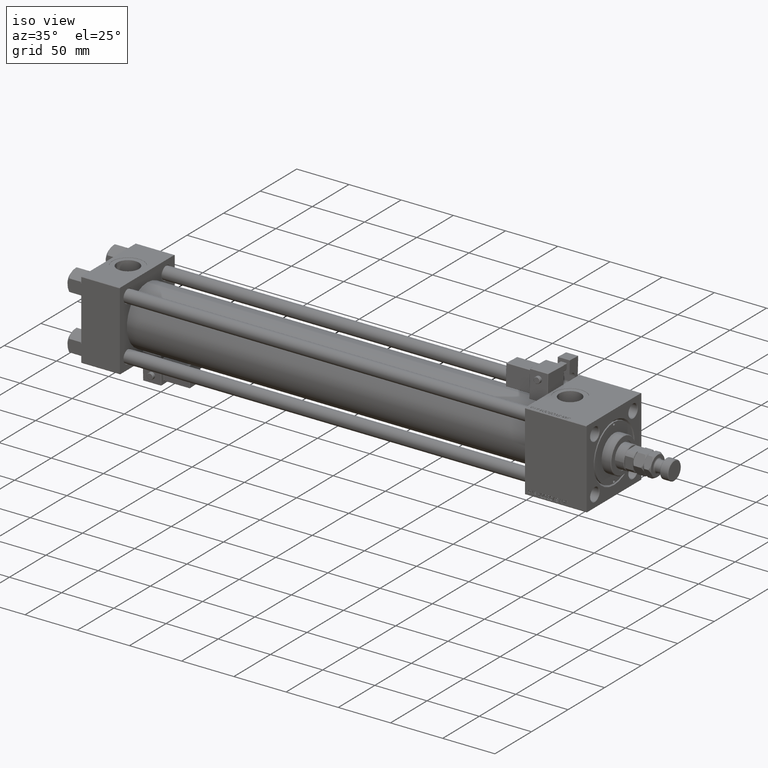
[diagram: clean part render]
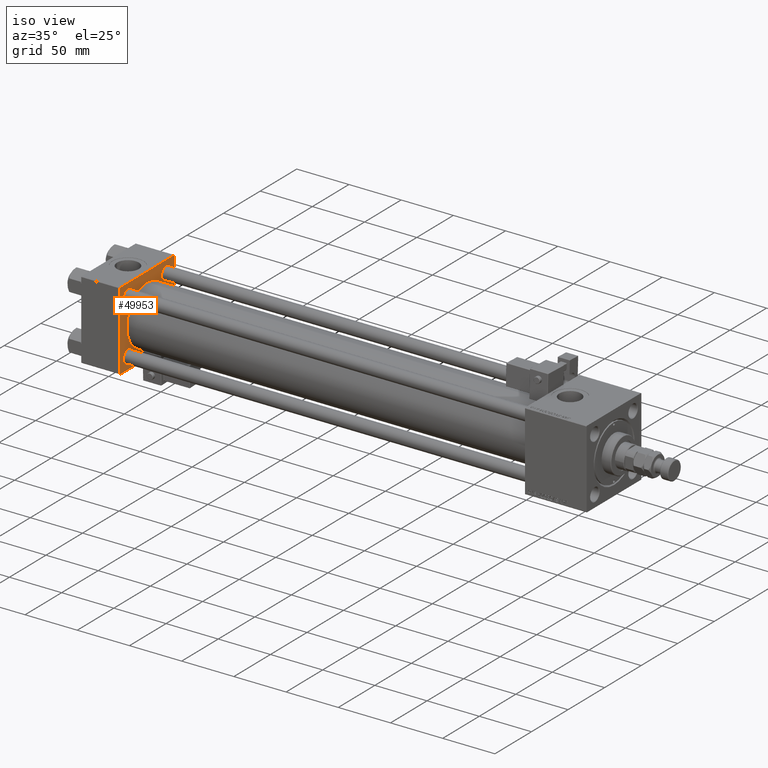
[diagram: same view with one face highlighted and labeled with its STEP entity id]
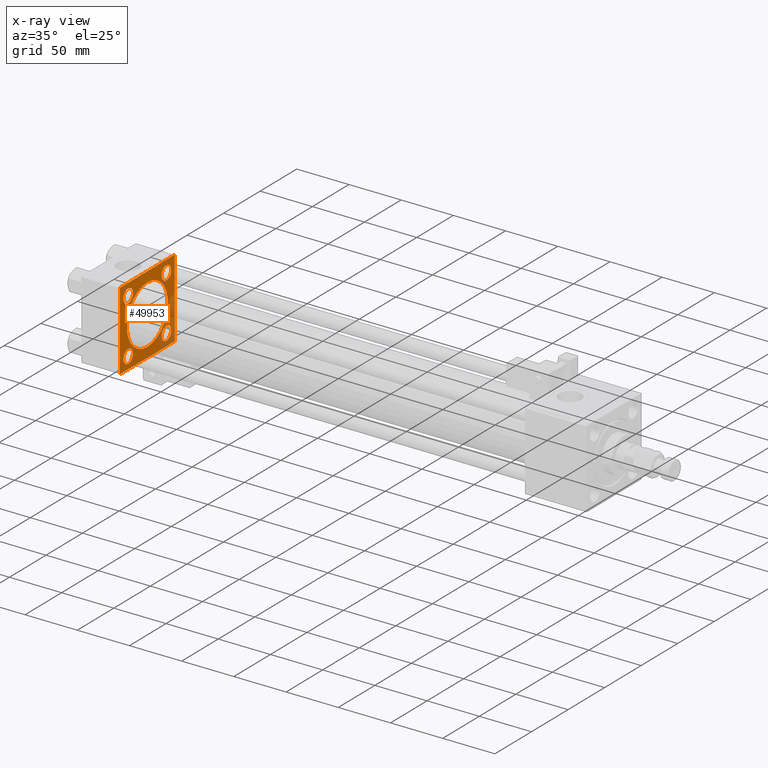
[diagram: x-ray of the same camera — body ghosted, the highlighted face saturated]
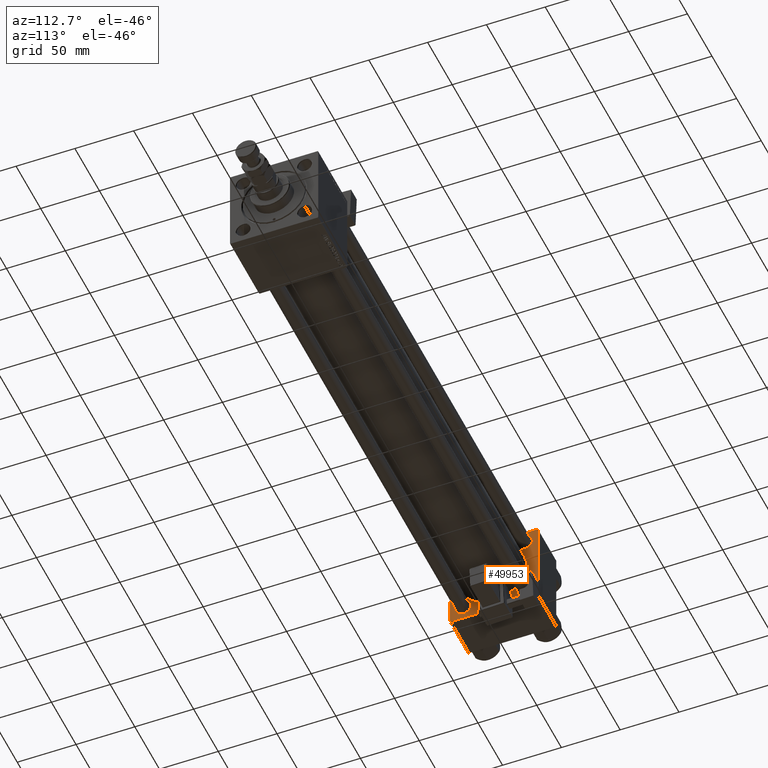
[diagram: same view with one face highlighted and labeled with its STEP entity id]
A machine part, iso view. The second image highlights one B-rep face of the part: STEP entity #49953.
The next image is the same camera in x-ray: the body ghosted, the highlighted face saturated — about 20% of this face is hidden behind the body in this view.
A second angle (auxiliary view) of the same face is appended — the face is thin or edge-on in the first view.
In plain terms, the highlighted planar face has unit normal (-1, 0, 0).
Its self-contained STEP definition (entity closure, byte-faithful):
#242 = LINE ( 'NONE', #22148, #11803 ) ;
#352 = VERTEX_POINT ( 'NONE', #8174 ) ;
#850 = CARTESIAN_POINT ( 'NONE',  ( 37.00000000000000000, -26.14999999999999147, 26.15000000000000924 ) ) ;
#1412 = DIRECTION ( 'NONE',  ( -1.000000000000000000, 0.000000000000000000, -0.000000000000000000 ) ) ;
#1723 = DIRECTION ( 'NONE',  ( -1.000000000000000000, 0.000000000000000000, -0.000000000000000000 ) ) ;
#1790 = DIRECTION ( 'NONE',  ( 0.000000000000000000, 0.000000000000000000, 1.000000000000000000 ) ) ;
#2245 = EDGE_CURVE ( 'NONE', #13250, #37395, #6244, .T. ) ;
#2467 = EDGE_LOOP ( 'NONE', ( #34985, #48156 ) ) ;
#2766 = FACE_BOUND ( 'NONE', #33603, .T. ) ;
#3042 = CARTESIAN_POINT ( 'NONE',  ( 37.00000000000000000, 0.000000000000000000, 0.000000000000000000 ) ) ;
#3247 = CARTESIAN_POINT ( 'NONE',  ( 37.00000000000000000, -37.50000000000000711, 37.49999999999999289 ) ) ;
#3639 = CARTESIAN_POINT ( 'NONE',  ( 37.00000000000000000, 26.14999999999999858, -19.65000000000005542 ) ) ;
#3756 = CARTESIAN_POINT ( 'NONE',  ( 37.00000000000000000, 37.49999999999999289, 37.00000000000000000 ) ) ;
#4483 = VERTEX_POINT ( 'NONE', #25247 ) ;
#5634 = ORIENTED_EDGE ( 'NONE', *, *, #12962, .T. ) ;
#6244 = CIRCLE ( 'NONE', #52657, 6.499999999999946709 ) ;
#6346 = DIRECTION ( 'NONE',  ( -1.000000000000000000, 0.000000000000000000, -0.000000000000000000 ) ) ;
#6620 = FACE_OUTER_BOUND ( 'NONE', #18062, .T. ) ;
#6739 = VERTEX_POINT ( 'NONE', #53852 ) ;
#7400 = VERTEX_POINT ( 'NONE', #47645 ) ;
#8165 = EDGE_CURVE ( 'NONE', #34318, #24798, #16839, .T. ) ;
#8174 = CARTESIAN_POINT ( 'NONE',  ( 37.00000000000000000, -26.14999999999999147, -19.65000000000000924 ) ) ;
#9033 = DIRECTION ( 'NONE',  ( -1.000000000000000000, 0.000000000000000000, -0.000000000000000000 ) ) ;
#9695 = VERTEX_POINT ( 'NONE', #3639 ) ;
#10541 = CARTESIAN_POINT ( 'NONE',  ( 36.99999999999997868, -2.602085213965210642E-15, 0.000000000000000000 ) ) ;
#10729 = CARTESIAN_POINT ( 'NONE',  ( 37.00000000000000000, 26.14999999999999858, 32.64999999999995595 ) ) ;
#10896 = ORIENTED_EDGE ( 'NONE', *, *, #23492, .T. ) ;
#10977 = FACE_BOUND ( 'NONE', #2467, .T. ) ;
#11002 = DIRECTION ( 'NONE',  ( 0.000000000000000000, -0.7071067811865474617, 0.7071067811865474617 ) ) ;
#11240 = FACE_BOUND ( 'NONE', #31406, .T. ) ;
#11274 = CARTESIAN_POINT ( 'NONE',  ( 37.00000000000000000, 37.49999999999999289, -36.99999999999998579 ) ) ;
#11725 = CIRCLE ( 'NONE', #20517, 6.500000000000002665 ) ;
#11803 = VECTOR ( 'NONE', #38866, 1000.000000000000000 ) ;
#12704 = VECTOR ( 'NONE', #14506, 1000.000000000000114 ) ;
#12782 = DIRECTION ( 'NONE',  ( 0.000000000000000000, 0.000000000000000000, 1.000000000000000000 ) ) ;
#12824 = AXIS2_PLACEMENT_3D ( 'NONE', #43119, #38748, #18450 ) ;
#12962 = EDGE_CURVE ( 'NONE', #352, #37339, #11725, .T. ) ;
#13226 = DIRECTION ( 'NONE',  ( 0.000000000000000000, 0.000000000000000000, 1.000000000000000000 ) ) ;
#13250 = VERTEX_POINT ( 'NONE', #47779 ) ;
#14393 = EDGE_LOOP ( 'NONE', ( #19143, #17265 ) ) ;
#14469 = VERTEX_POINT ( 'NONE', #42889 ) ;
#14506 = DIRECTION ( 'NONE',  ( -0.000000000000000000, 0.7071067811865474617, 0.7071067811865474617 ) ) ;
#14986 = EDGE_CURVE ( 'NONE', #4483, #38370, #242, .T. ) ;
#15864 = DIRECTION ( 'NONE',  ( 0.000000000000000000, -1.000000000000000000, -9.251858538542971581E-17 ) ) ;
#16181 = EDGE_CURVE ( 'NONE', #6739, #7400, #19476, .T. ) ;
#16435 = ORIENTED_EDGE ( 'NONE', *, *, #32287, .T. ) ;
#16839 = CIRCLE ( 'NONE', #21242, 6.500000000000008882 ) ;
#17064 = CIRCLE ( 'NONE', #24072, 6.499999999999946709 ) ;
#17119 = VECTOR ( 'NONE', #36192, 1000.000000000000114 ) ;
#17227 = CIRCLE ( 'NONE', #12824, 28.00000000000000000 ) ;
#17265 = ORIENTED_EDGE ( 'NONE', *, *, #54141, .T. ) ;
#17371 = EDGE_CURVE ( 'NONE', #36654, #45252, #17227, .T. ) ;
#17833 = DIRECTION ( 'NONE',  ( -1.000000000000000000, 0.000000000000000000, -0.000000000000000000 ) ) ;
#17931 = CIRCLE ( 'NONE', #45917, 6.499999999999946709 ) ;
#18062 = EDGE_LOOP ( 'NONE', ( #23782, #19956, #45639, #10896, #39217, #51604, #18335, #16435 ) ) ;
#18335 = ORIENTED_EDGE ( 'NONE', *, *, #50605, .T. ) ;
#18450 = DIRECTION ( 'NONE',  ( 0.000000000000000000, 0.000000000000000000, 1.000000000000000000 ) ) ;
#19143 = ORIENTED_EDGE ( 'NONE', *, *, #2245, .T. ) ;
#19476 = LINE ( 'NONE', #23050, #17119 ) ;
#19653 = CIRCLE ( 'NONE', #34565, 6.499999999999946709 ) ;
#19956 = ORIENTED_EDGE ( 'NONE', *, *, #34770, .T. ) ;
#19966 = DIRECTION ( 'NONE',  ( 0.000000000000000000, 9.251858538542971581E-17, -1.000000000000000000 ) ) ;
#20071 = CARTESIAN_POINT ( 'NONE',  ( 37.00000000000000000, -37.00000000000002132, -37.50000000000000711 ) ) ;
#20491 = DIRECTION ( 'NONE',  ( -1.000000000000000000, 0.000000000000000000, -0.000000000000000000 ) ) ;
#20517 = AXIS2_PLACEMENT_3D ( 'NONE', #39338, #30851, #1790 ) ;
#21042 = LINE ( 'NONE', #3247, #39645 ) ;
#21242 = AXIS2_PLACEMENT_3D ( 'NONE', #49550, #20491, #12782 ) ;
#22148 = CARTESIAN_POINT ( 'NONE',  ( 37.00000000000000000, 37.49999999999999289, -37.50000000000000000 ) ) ;
#22454 = DIRECTION ( 'NONE',  ( 0.000000000000000000, 0.000000000000000000, 1.000000000000000000 ) ) ;
#22491 = CARTESIAN_POINT ( 'NONE',  ( 37.00000000000000000, 26.14999999999999858, 26.15000000000000213 ) ) ;
#23050 = CARTESIAN_POINT ( 'NONE',  ( 37.00000000000000000, -37.50000000000000711, 36.99999999999999289 ) ) ;
#23492 = EDGE_CURVE ( 'NONE', #24955, #14469, #53497, .T. ) ;
#23782 = ORIENTED_EDGE ( 'NONE', *, *, #14986, .F. ) ;
#24072 = AXIS2_PLACEMENT_3D ( 'NONE', #50802, #1723, #13226 ) ;
#24719 = CARTESIAN_POINT ( 'NONE',  ( 37.00000000000000000, 37.49999999999999289, 37.50000000000000000 ) ) ;
#24741 = AXIS2_PLACEMENT_3D ( 'NONE', #850, #51006, #43031 ) ;
#24798 = VERTEX_POINT ( 'NONE', #27352 ) ;
#24955 = VERTEX_POINT ( 'NONE', #3756 ) ;
#25247 = CARTESIAN_POINT ( 'NONE',  ( 37.00000000000000000, 36.99999999999997868, -37.50000000000000000 ) ) ;
#25564 = CARTESIAN_POINT ( 'NONE',  ( 37.00000000000000000, -26.14999999999999147, 32.65000000000001990 ) ) ;
#25986 = VERTEX_POINT ( 'NONE', #38041 ) ;
#26564 = CARTESIAN_POINT ( 'NONE',  ( 37.00000000000000000, -26.14999999999999147, -26.15000000000000924 ) ) ;
#26830 = DIRECTION ( 'NONE',  ( 0.000000000000000000, 0.000000000000000000, 1.000000000000000000 ) ) ;
#27146 = DIRECTION ( 'NONE',  ( 0.000000000000000000, 0.000000000000000000, 1.000000000000000000 ) ) ;
#27352 = CARTESIAN_POINT ( 'NONE',  ( 37.00000000000000000, -26.14999999999999147, 19.65000000000000213 ) ) ;
#27389 = AXIS2_PLACEMENT_3D ( 'NONE', #3042, #6346, #48014 ) ;
#28039 = EDGE_CURVE ( 'NONE', #24798, #34318, #39600, .T. ) ;
#28492 = DIRECTION ( 'NONE',  ( 0.000000000000000000, 0.7071067811865524577, -0.7071067811865426878 ) ) ;
#29573 = CARTESIAN_POINT ( 'NONE',  ( 36.99999999999997868, 8.269258236473776482E-16, -28.00000000000000000 ) ) ;
#30248 = CARTESIAN_POINT ( 'NONE',  ( 37.00000000000000000, -26.14999999999999147, -32.65000000000001279 ) ) ;
#30577 = CARTESIAN_POINT ( 'NONE',  ( 36.99999999999997868, -2.602085213965210642E-15, 28.00000000000000000 ) ) ;
#30851 = DIRECTION ( 'NONE',  ( -1.000000000000000000, 0.000000000000000000, -0.000000000000000000 ) ) ;
#31287 = ORIENTED_EDGE ( 'NONE', *, *, #17371, .F. ) ;
#31406 = EDGE_LOOP ( 'NONE', ( #46216, #5634 ) ) ;
#31411 = DIRECTION ( 'NONE',  ( 1.000000000000000000, -0.000000000000000000, 0.000000000000000000 ) ) ;
#31855 = ORIENTED_EDGE ( 'NONE', *, *, #32708, .F. ) ;
#32060 = LINE ( 'NONE', #36161, #42371 ) ;
#32287 = EDGE_CURVE ( 'NONE', #25986, #38370, #49326, .T. ) ;
#32365 = FACE_BOUND ( 'NONE', #14393, .T. ) ;
#32708 = EDGE_CURVE ( 'NONE', #45252, #36654, #41518, .T. ) ;
#32971 = VERTEX_POINT ( 'NONE', #38951 ) ;
#33265 = VECTOR ( 'NONE', #11002, 1000.000000000000114 ) ;
#33448 = EDGE_CURVE ( 'NONE', #9695, #32971, #19653, .T. ) ;
#33603 = EDGE_LOOP ( 'NONE', ( #41123, #47844 ) ) ;
#33735 = VECTOR ( 'NONE', #45807, 1000.000000000000000 ) ;
#34047 = DIRECTION ( 'NONE',  ( 0.000000000000000000, 0.000000000000000000, 1.000000000000000000 ) ) ;
#34318 = VERTEX_POINT ( 'NONE', #25564 ) ;
#34565 = AXIS2_PLACEMENT_3D ( 'NONE', #39161, #39968, #26830 ) ;
#34770 = EDGE_CURVE ( 'NONE', #4483, #36217, #42751, .T. ) ;
#34856 = CARTESIAN_POINT ( 'NONE',  ( 37.00000000000000000, 26.14999999999999858, 26.15000000000000213 ) ) ;
#34985 = ORIENTED_EDGE ( 'NONE', *, *, #37294, .T. ) ;
#35268 = CIRCLE ( 'NONE', #42259, 6.500000000000002665 ) ;
#35454 = EDGE_CURVE ( 'NONE', #14469, #6739, #32060, .T. ) ;
#36161 = CARTESIAN_POINT ( 'NONE',  ( 37.00000000000000000, 37.49999999999999289, 37.50000000000000000 ) ) ;
#36192 = DIRECTION ( 'NONE',  ( -0.000000000000000000, -0.7071067811865474617, -0.7071067811865474617 ) ) ;
#36217 = VERTEX_POINT ( 'NONE', #11274 ) ;
#36654 = VERTEX_POINT ( 'NONE', #29573 ) ;
#37294 = EDGE_CURVE ( 'NONE', #32971, #9695, #17064, .T. ) ;
#37339 = VERTEX_POINT ( 'NONE', #30248 ) ;
#37395 = VERTEX_POINT ( 'NONE', #10729 ) ;
#38041 = CARTESIAN_POINT ( 'NONE',  ( 37.00000000000000000, -37.50000000000000000, -37.00000000000003553 ) ) ;
#38370 = VERTEX_POINT ( 'NONE', #20071 ) ;
#38417 = EDGE_CURVE ( 'NONE', #24955, #36217, #45528, .T. ) ;
#38748 = DIRECTION ( 'NONE',  ( 1.000000000000000000, -0.000000000000000000, 0.000000000000000000 ) ) ;
#38807 = DIRECTION ( 'NONE',  ( 0.000000000000000000, 0.000000000000000000, 1.000000000000000000 ) ) ;
#38866 = DIRECTION ( 'NONE',  ( 0.000000000000000000, -1.000000000000000000, -9.251858538542972814E-17 ) ) ;
#38951 = CARTESIAN_POINT ( 'NONE',  ( 37.00000000000000000, 26.14999999999999858, -32.64999999999994884 ) ) ;
#39161 = CARTESIAN_POINT ( 'NONE',  ( 37.00000000000000000, 26.14999999999999858, -26.15000000000000213 ) ) ;
#39217 = ORIENTED_EDGE ( 'NONE', *, *, #35454, .T. ) ;
#39338 = CARTESIAN_POINT ( 'NONE',  ( 37.00000000000000000, -26.14999999999999147, -26.15000000000000924 ) ) ;
#39600 = CIRCLE ( 'NONE', #24741, 6.500000000000008882 ) ;
#39645 = VECTOR ( 'NONE', #19966, 1000.000000000000000 ) ;
#39968 = DIRECTION ( 'NONE',  ( -1.000000000000000000, 0.000000000000000000, -0.000000000000000000 ) ) ;
#40276 = CARTESIAN_POINT ( 'NONE',  ( 37.00000000000000000, -37.00000000000002132, -37.50000000000000711 ) ) ;
#41123 = ORIENTED_EDGE ( 'NONE', *, *, #28039, .T. ) ;
#41518 = CIRCLE ( 'NONE', #42379, 28.00000000000000000 ) ;
#42259 = AXIS2_PLACEMENT_3D ( 'NONE', #26564, #9033, #22454 ) ;
#42371 = VECTOR ( 'NONE', #15864, 1000.000000000000000 ) ;
#42379 = AXIS2_PLACEMENT_3D ( 'NONE', #10541, #31411, #38807 ) ;
#42751 = LINE ( 'NONE', #43287, #12704 ) ;
#42889 = CARTESIAN_POINT ( 'NONE',  ( 37.00000000000000000, 36.99999999999999289, 37.50000000000000000 ) ) ;
#43031 = DIRECTION ( 'NONE',  ( 0.000000000000000000, 0.000000000000000000, 1.000000000000000000 ) ) ;
#43119 = CARTESIAN_POINT ( 'NONE',  ( 36.99999999999997868, -2.602085213965210642E-15, 0.000000000000000000 ) ) ;
#43287 = CARTESIAN_POINT ( 'NONE',  ( 37.00000000000000000, 37.49999999999999289, -36.99999999999998579 ) ) ;
#44156 = FACE_BOUND ( 'NONE', #48922, .T. ) ;
#45252 = VERTEX_POINT ( 'NONE', #30577 ) ;
#45528 = LINE ( 'NONE', #24719, #33735 ) ;
#45639 = ORIENTED_EDGE ( 'NONE', *, *, #38417, .F. ) ;
#45807 = DIRECTION ( 'NONE',  ( 0.000000000000000000, 0.000000000000000000, -1.000000000000000000 ) ) ;
#45917 = AXIS2_PLACEMENT_3D ( 'NONE', #34856, #1412, #34047 ) ;
#46216 = ORIENTED_EDGE ( 'NONE', *, *, #50193, .T. ) ;
#47645 = CARTESIAN_POINT ( 'NONE',  ( 37.00000000000000000, -37.50000000000000711, 36.99999999999999289 ) ) ;
#47779 = CARTESIAN_POINT ( 'NONE',  ( 37.00000000000000000, 26.14999999999999858, 19.65000000000005187 ) ) ;
#47844 = ORIENTED_EDGE ( 'NONE', *, *, #8165, .T. ) ;
#48014 = DIRECTION ( 'NONE',  ( -0.000000000000000000, 0.000000000000000000, 1.000000000000000000 ) ) ;
#48156 = ORIENTED_EDGE ( 'NONE', *, *, #33448, .T. ) ;
#48269 = PLANE ( 'NONE',  #27389 ) ;
#48844 = CARTESIAN_POINT ( 'NONE',  ( 37.00000000000000000, 36.99999999999999289, 37.50000000000000000 ) ) ;
#48922 = EDGE_LOOP ( 'NONE', ( #31855, #31287 ) ) ;
#49326 = LINE ( 'NONE', #40276, #53783 ) ;
#49550 = CARTESIAN_POINT ( 'NONE',  ( 37.00000000000000000, -26.14999999999999147, 26.15000000000000924 ) ) ;
#49953 = ADVANCED_FACE ( 'NONE', ( #11240, #10977, #2766, #32365, #44156, #6620 ), #48269, .F. ) ;
#50193 = EDGE_CURVE ( 'NONE', #37339, #352, #35268, .T. ) ;
#50605 = EDGE_CURVE ( 'NONE', #7400, #25986, #21042, .T. ) ;
#50802 = CARTESIAN_POINT ( 'NONE',  ( 37.00000000000000000, 26.14999999999999858, -26.15000000000000213 ) ) ;
#51006 = DIRECTION ( 'NONE',  ( -1.000000000000000000, 0.000000000000000000, -0.000000000000000000 ) ) ;
#51604 = ORIENTED_EDGE ( 'NONE', *, *, #16181, .T. ) ;
#52657 = AXIS2_PLACEMENT_3D ( 'NONE', #22491, #17833, #27146 ) ;
#53497 = LINE ( 'NONE', #48844, #33265 ) ;
#53783 = VECTOR ( 'NONE', #28492, 1000.000000000000000 ) ;
#53852 = CARTESIAN_POINT ( 'NONE',  ( 37.00000000000000000, -37.00000000000000711, 37.49999999999999289 ) ) ;
#54141 = EDGE_CURVE ( 'NONE', #37395, #13250, #17931, .T. ) ;